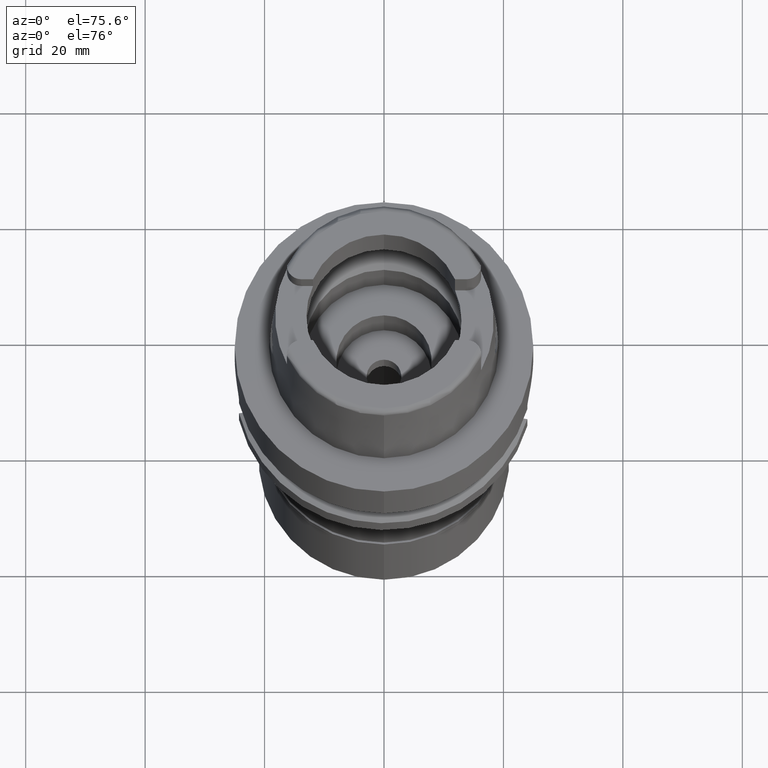
[diagram: clean part render]
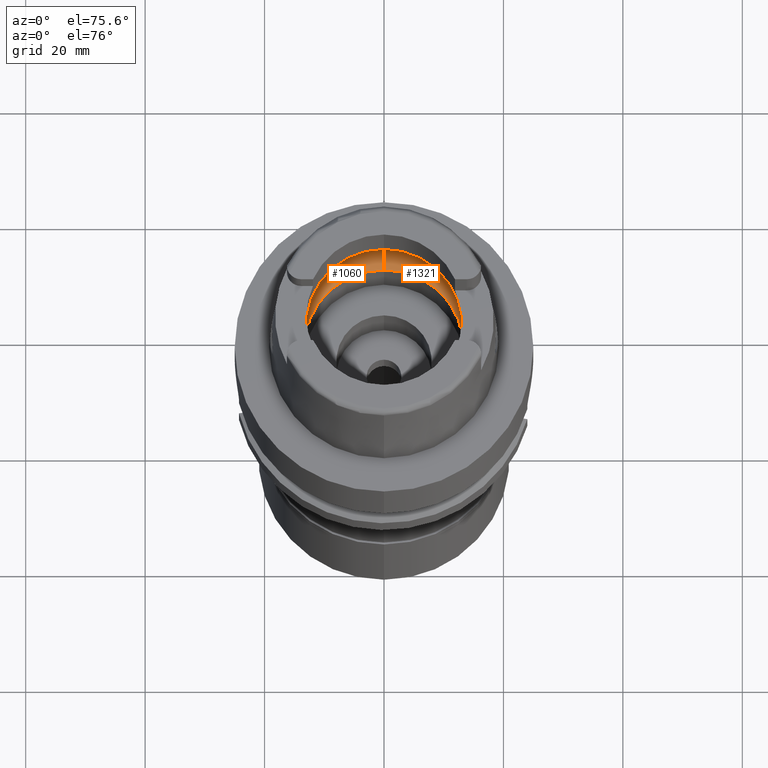
[diagram: same view with one multi-face feature highlighted, each face labeled with its STEP entity id]
A machine part, auxiliary view. The highlighted faces form ONE feature: a constant-radius fillet chain: 2 tangent blend faces with common blend radius 6 mm. The faces share edges in the B-rep.
Their STEP definitions:
[1] entity #1060 (Torus):
#5 = CARTESIAN_POINT ( 'NONE',  ( -15.92748130313666799, -1.536287252972227124, 4.910241166260291834 ) ) ;
#130 = VERTEX_POINT ( 'NONE', #3704 ) ;
#197 = AXIS2_PLACEMENT_3D ( 'NONE', #1414, #2246, #3948 ) ;
#212 = ORIENTED_EDGE ( 'NONE', *, *, #2980, .F. ) ;
#507 = CARTESIAN_POINT ( 'NONE',  ( 0.0000000000000000000, 0.0000000000000000000, 5.060987926546999915 ) ) ;
#533 = VERTEX_POINT ( 'NONE', #4142 ) ;
#663 = CARTESIAN_POINT ( 'NONE',  ( -15.90436354886000103, 1.746774199932999982, 5.060987926546999915 ) ) ;
#678 = B_SPLINE_CURVE_WITH_KNOTS ( 'NONE', 3,
 ( #3483, #4872, #2756, #4461, #3055, #663 ),
 .UNSPECIFIED., .F., .F.,
 ( 4, 2, 4 ),
 ( 0.0000000000000000000, 0.5000000000000000000, 1.000000000000000000 ),
 .UNSPECIFIED. ) ;
#879 = ORIENTED_EDGE ( 'NONE', *, *, #1260, .F. ) ;
#881 = ORIENTED_EDGE ( 'NONE', *, *, #2352, .F. ) ;
#890 = EDGE_CURVE ( 'NONE', #4356, #2804, #1323, .T. ) ;
#931 = DIRECTION ( 'NONE',  ( 0.0000000000000000000, -1.000000000000000000, 0.0000000000000000000 ) ) ;
#1004 = VERTEX_POINT ( 'NONE', #2029 ) ;
#1060 = ADVANCED_FACE ( 'NONE', ( #5416 ), #4874, .F. ) ;
#1119 = DIRECTION ( 'NONE',  ( 0.0000000000000000000, 0.0000000000000000000, -1.000000000000000000 ) ) ;
#1244 = ORIENTED_EDGE ( 'NONE', *, *, #890, .F. ) ;
#1260 = EDGE_CURVE ( 'NONE', #130, #4488, #5432, .T. ) ;
#1268 = AXIS2_PLACEMENT_3D ( 'NONE', #4284, #4640, #4225 ) ;
#1323 = CIRCLE ( 'NONE', #2382, 16.00000000000000355 ) ;
#1414 = CARTESIAN_POINT ( 'NONE',  ( 0.0000000000000000000, 10.00000000000000000, 5.060987926546999915 ) ) ;
#1491 = EDGE_CURVE ( 'NONE', #533, #130, #3712, .T. ) ;
#1542 = DIRECTION ( 'NONE',  ( 0.0000000000000000000, 0.0000000000000000000, -1.000000000000000000 ) ) ;
#1612 = CARTESIAN_POINT ( 'NONE',  ( -15.94481961884416954, -1.284363903373151983, 4.771085202048062079 ) ) ;
#1690 = CARTESIAN_POINT ( 'NONE',  ( -15.97371681168999835, 0.0000000000000000000, 4.500000000000000000 ) ) ;
#1849 = CARTESIAN_POINT ( 'NONE',  ( -15.90436354886000103, 1.746774199932999982, 5.060987926546999915 ) ) ;
#2029 = CARTESIAN_POINT ( 'NONE',  ( 0.0000000000000000000, 13.29999999999999893, 0.05000000000001000172 ) ) ;
#2101 = CARTESIAN_POINT ( 'NONE',  ( -15.97371681168999835, -0.3626031211644242247, 4.499999999999999112 ) ) ;
#2236 = CIRCLE ( 'NONE', #1268, 13.29999999999999893 ) ;
#2246 = DIRECTION ( 'NONE',  ( 1.000000000000000000, 0.0000000000000000000, 0.0000000000000000000 ) ) ;
#2318 = AXIS2_PLACEMENT_3D ( 'NONE', #3622, #2760, #4952 ) ;
#2352 = EDGE_CURVE ( 'NONE', #4488, #4356, #678, .T. ) ;
#2382 = AXIS2_PLACEMENT_3D ( 'NONE', #3205, #1542, #5309 ) ;
#2547 = CARTESIAN_POINT ( 'NONE',  ( -15.90436354886000103, -1.746774199932999982, 5.060987926546999915 ) ) ;
#2565 = CIRCLE ( 'NONE', #197, 5.999999999999993783 ) ;
#2756 = CARTESIAN_POINT ( 'NONE',  ( -15.96793737312083827, 0.6977532815320883763, 4.565769782569849333 ) ) ;
#2760 = DIRECTION ( 'NONE',  ( -1.000000000000000000, 0.0000000000000000000, 0.0000000000000000000 ) ) ;
#2804 = VERTEX_POINT ( 'NONE', #4944 ) ;
#2951 = ORIENTED_EDGE ( 'NONE', *, *, #3404, .F. ) ;
#2980 = EDGE_CURVE ( 'NONE', #1004, #5066, #2236, .T. ) ;
#3030 = EDGE_LOOP ( 'NONE', ( #4313, #2951, #212, #5279, #1244, #881, #879 ) ) ;
#3055 = CARTESIAN_POINT ( 'NONE',  ( -15.92748130313666799, 1.536287252947671211, 4.910241166242705013 ) ) ;
#3082 = AXIS2_PLACEMENT_3D ( 'NONE', #507, #1119, #931 ) ;
#3205 = CARTESIAN_POINT ( 'NONE',  ( 0.0000000000000000000, 0.0000000000000000000, 5.060987926546999915 ) ) ;
#3263 = EDGE_CURVE ( 'NONE', #1004, #2804, #2565, .T. ) ;
#3337 = CARTESIAN_POINT ( 'NONE',  ( -15.96793737312083472, -0.6977532815764048157, 4.565769782580386682 ) ) ;
#3352 = CARTESIAN_POINT ( 'NONE',  ( -15.97371681168999835, 0.0000000000000000000, 4.500000000000000000 ) ) ;
#3400 = CARTESIAN_POINT ( 'NONE',  ( 0.0000000000000000000, 0.0000000000000000000, 5.060987926546999915 ) ) ;
#3404 = EDGE_CURVE ( 'NONE', #5066, #533, #5410, .T. ) ;
#3483 = CARTESIAN_POINT ( 'NONE',  ( -15.97371681168999835, 0.0000000000000000000, 4.500000000000000000 ) ) ;
#3622 = CARTESIAN_POINT ( 'NONE',  ( 0.0000000000000000000, -10.00000000000000000, 5.060987926546999915 ) ) ;
#3704 = CARTESIAN_POINT ( 'NONE',  ( -15.90436354886000103, -1.746774199932999982, 5.060987926546999915 ) ) ;
#3712 = CIRCLE ( 'NONE', #3082, 16.00000000000000000 ) ;
#3759 = DIRECTION ( 'NONE',  ( 0.0000000000000000000, 1.000000000000000000, 0.0000000000000000000 ) ) ;
#3948 = DIRECTION ( 'NONE',  ( 0.0000000000000000000, 0.5500000000000007105, -0.8351646544245028281 ) ) ;
#4142 = CARTESIAN_POINT ( 'NONE',  ( 0.0000000000000000000, -16.00000000000000000, 5.060987926546999915 ) ) ;
#4225 = DIRECTION ( 'NONE',  ( 0.0000000000000000000, 1.000000000000000000, 0.0000000000000000000 ) ) ;
#4284 = CARTESIAN_POINT ( 'NONE',  ( 0.0000000000000000000, 0.0000000000000000000, 0.05000000000001000172 ) ) ;
#4313 = ORIENTED_EDGE ( 'NONE', *, *, #1491, .F. ) ;
#4356 = VERTEX_POINT ( 'NONE', #1849 ) ;
#4461 = CARTESIAN_POINT ( 'NONE',  ( -15.94481961884416599, 1.284363903331934509, 4.771085202028663375 ) ) ;
#4488 = VERTEX_POINT ( 'NONE', #3352 ) ;
#4623 = DIRECTION ( 'NONE',  ( 0.0000000000000000000, 0.0000000000000000000, 1.000000000000000000 ) ) ;
#4640 = DIRECTION ( 'NONE',  ( 0.0000000000000000000, 0.0000000000000000000, 1.000000000000000000 ) ) ;
#4675 = CARTESIAN_POINT ( 'NONE',  ( 0.0000000000000000000, -13.29999999999999893, 0.05000000000001000172 ) ) ;
#4872 = CARTESIAN_POINT ( 'NONE',  ( -15.97371681168999835, 0.3626031211342209404, 4.500000000000000000 ) ) ;
#4874 = TOROIDAL_SURFACE ( 'NONE', #5032, 10.00000000000000000, 6.000000000000000000 ) ;
#4944 = CARTESIAN_POINT ( 'NONE',  ( 0.0000000000000000000, 16.00000000000000000, 5.060987926546999915 ) ) ;
#4952 = DIRECTION ( 'NONE',  ( 0.0000000000000000000, -0.5500000000000007105, -0.8351646544245028281 ) ) ;
#5032 = AXIS2_PLACEMENT_3D ( 'NONE', #3400, #4623, #3759 ) ;
#5066 = VERTEX_POINT ( 'NONE', #4675 ) ;
#5279 = ORIENTED_EDGE ( 'NONE', *, *, #3263, .T. ) ;
#5309 = DIRECTION ( 'NONE',  ( -0.9940227218040297297, 0.1091733874958031730, 0.0000000000000000000 ) ) ;
#5410 = CIRCLE ( 'NONE', #2318, 5.999999999999993783 ) ;
#5416 = FACE_OUTER_BOUND ( 'NONE', #3030, .T. ) ;
#5432 = B_SPLINE_CURVE_WITH_KNOTS ( 'NONE', 3,
 ( #2547, #5, #1612, #3337, #2101, #1690 ),
 .UNSPECIFIED., .F., .F.,
 ( 4, 2, 4 ),
 ( 0.0000000000000000000, 0.5000000000000000000, 1.000000000000000000 ),
 .UNSPECIFIED. ) ;
[2] entity #1321 (Torus):
#46 = CARTESIAN_POINT ( 'NONE',  ( 15.97371681168999835, 0.3626031211644606955, 4.500000000000000888 ) ) ;
#119 = B_SPLINE_CURVE_WITH_KNOTS ( 'NONE', 3,
 ( #485, #5132, #2193, #155, #46, #4339 ),
 .UNSPECIFIED., .F., .F.,
 ( 4, 2, 4 ),
 ( 0.0000000000000000000, 0.5000000000000000000, 1.000000000000000000 ),
 .UNSPECIFIED. ) ;
#149 = CARTESIAN_POINT ( 'NONE',  ( 0.0000000000000000000, 0.0000000000000000000, 5.060987926546999915 ) ) ;
#155 = CARTESIAN_POINT ( 'NONE',  ( 15.96793737312082406, 0.6977532815764533325, 4.565769782580398228 ) ) ;
#197 = AXIS2_PLACEMENT_3D ( 'NONE', #1414, #2246, #3948 ) ;
#220 = CARTESIAN_POINT ( 'NONE',  ( 15.97371681168999835, 0.0000000000000000000, 4.500000000000000000 ) ) ;
#287 = DIRECTION ( 'NONE',  ( 0.0000000000000000000, 0.0000000000000000000, -1.000000000000000000 ) ) ;
#440 = VERTEX_POINT ( 'NONE', #4222 ) ;
#442 = AXIS2_PLACEMENT_3D ( 'NONE', #4230, #2053, #482 ) ;
#482 = DIRECTION ( 'NONE',  ( 0.0000000000000000000, -1.000000000000000000, 0.0000000000000000000 ) ) ;
#485 = CARTESIAN_POINT ( 'NONE',  ( 15.90436354886000103, 1.746774199932999982, 5.060987926546999915 ) ) ;
#492 = ORIENTED_EDGE ( 'NONE', *, *, #1227, .F. ) ;
#533 = VERTEX_POINT ( 'NONE', #4142 ) ;
#726 = AXIS2_PLACEMENT_3D ( 'NONE', #149, #5181, #1333 ) ;
#947 = VERTEX_POINT ( 'NONE', #3287 ) ;
#1004 = VERTEX_POINT ( 'NONE', #2029 ) ;
#1014 = CIRCLE ( 'NONE', #4820, 16.00000000000000000 ) ;
#1227 = EDGE_CURVE ( 'NONE', #5066, #1004, #5212, .T. ) ;
#1321 = ADVANCED_FACE ( 'NONE', ( #4590 ), #3360, .F. ) ;
#1332 = B_SPLINE_CURVE_WITH_KNOTS ( 'NONE', 3,
 ( #4210, #4262, #3265, #4083, #4650, #1523 ),
 .UNSPECIFIED., .F., .F.,
 ( 4, 2, 4 ),
 ( 0.0000000000000000000, 0.5000000000000000000, 1.000000000000000000 ),
 .UNSPECIFIED. ) ;
#1333 = DIRECTION ( 'NONE',  ( 0.9940227218040297297, -0.1091733874958031730, 0.0000000000000000000 ) ) ;
#1414 = CARTESIAN_POINT ( 'NONE',  ( 0.0000000000000000000, 10.00000000000000000, 5.060987926546999915 ) ) ;
#1523 = CARTESIAN_POINT ( 'NONE',  ( 15.90436354886000103, -1.746774199932999982, 5.060987926546999915 ) ) ;
#1843 = ORIENTED_EDGE ( 'NONE', *, *, #3179, .F. ) ;
#1980 = ORIENTED_EDGE ( 'NONE', *, *, #3690, .F. ) ;
#2029 = CARTESIAN_POINT ( 'NONE',  ( 0.0000000000000000000, 13.29999999999999893, 0.05000000000001000172 ) ) ;
#2053 = DIRECTION ( 'NONE',  ( 0.0000000000000000000, 0.0000000000000000000, 1.000000000000000000 ) ) ;
#2193 = CARTESIAN_POINT ( 'NONE',  ( 15.94481961884416954, 1.284363903373195281, 4.771085202048084284 ) ) ;
#2246 = DIRECTION ( 'NONE',  ( 1.000000000000000000, 0.0000000000000000000, 0.0000000000000000000 ) ) ;
#2307 = CIRCLE ( 'NONE', #726, 16.00000000000000355 ) ;
#2318 = AXIS2_PLACEMENT_3D ( 'NONE', #3622, #2760, #4952 ) ;
#2340 = VERTEX_POINT ( 'NONE', #220 ) ;
#2353 = EDGE_LOOP ( 'NONE', ( #1980, #3924, #3409, #492, #3491, #1843, #2944 ) ) ;
#2387 = AXIS2_PLACEMENT_3D ( 'NONE', #4206, #2935, #2799 ) ;
#2565 = CIRCLE ( 'NONE', #197, 5.999999999999993783 ) ;
#2760 = DIRECTION ( 'NONE',  ( -1.000000000000000000, 0.0000000000000000000, 0.0000000000000000000 ) ) ;
#2799 = DIRECTION ( 'NONE',  ( 0.0000000000000000000, 1.000000000000000000, 0.0000000000000000000 ) ) ;
#2800 = EDGE_CURVE ( 'NONE', #2804, #947, #1014, .T. ) ;
#2804 = VERTEX_POINT ( 'NONE', #4944 ) ;
#2935 = DIRECTION ( 'NONE',  ( 0.0000000000000000000, 0.0000000000000000000, 1.000000000000000000 ) ) ;
#2944 = ORIENTED_EDGE ( 'NONE', *, *, #5070, .F. ) ;
#3179 = EDGE_CURVE ( 'NONE', #440, #533, #2307, .T. ) ;
#3192 = DIRECTION ( 'NONE',  ( 0.0000000000000000000, 1.000000000000000000, 0.0000000000000000000 ) ) ;
#3263 = EDGE_CURVE ( 'NONE', #1004, #2804, #2565, .T. ) ;
#3265 = CARTESIAN_POINT ( 'NONE',  ( 15.96793737312083472, -0.6977532816171033714, 4.565769782590064274 ) ) ;
#3287 = CARTESIAN_POINT ( 'NONE',  ( 15.90436354886000103, 1.746774199932999982, 5.060987926546999915 ) ) ;
#3360 = TOROIDAL_SURFACE ( 'NONE', #2387, 10.00000000000000000, 6.000000000000000000 ) ;
#3404 = EDGE_CURVE ( 'NONE', #5066, #533, #5410, .T. ) ;
#3409 = ORIENTED_EDGE ( 'NONE', *, *, #3263, .F. ) ;
#3491 = ORIENTED_EDGE ( 'NONE', *, *, #3404, .T. ) ;
#3622 = CARTESIAN_POINT ( 'NONE',  ( 0.0000000000000000000, -10.00000000000000000, 5.060987926546999915 ) ) ;
#3690 = EDGE_CURVE ( 'NONE', #947, #2340, #119, .T. ) ;
#3924 = ORIENTED_EDGE ( 'NONE', *, *, #2800, .F. ) ;
#3948 = DIRECTION ( 'NONE',  ( 0.0000000000000000000, 0.5500000000000007105, -0.8351646544245028281 ) ) ;
#4083 = CARTESIAN_POINT ( 'NONE',  ( 15.94481961884416599, -1.284363903411000596, 4.771085202065872721 ) ) ;
#4094 = CARTESIAN_POINT ( 'NONE',  ( 0.0000000000000000000, 0.0000000000000000000, 5.060987926546999915 ) ) ;
#4142 = CARTESIAN_POINT ( 'NONE',  ( 0.0000000000000000000, -16.00000000000000000, 5.060987926546999915 ) ) ;
#4206 = CARTESIAN_POINT ( 'NONE',  ( 0.0000000000000000000, 0.0000000000000000000, 5.060987926546999915 ) ) ;
#4210 = CARTESIAN_POINT ( 'NONE',  ( 15.97371681168999835, 0.0000000000000000000, 4.500000000000000000 ) ) ;
#4222 = CARTESIAN_POINT ( 'NONE',  ( 15.90436354886000103, -1.746774199932999982, 5.060987926546999915 ) ) ;
#4230 = CARTESIAN_POINT ( 'NONE',  ( 0.0000000000000000000, 0.0000000000000000000, 0.05000000000001000172 ) ) ;
#4262 = CARTESIAN_POINT ( 'NONE',  ( 15.97371681169000190, -0.3626031211921638686, 4.500000000000000000 ) ) ;
#4339 = CARTESIAN_POINT ( 'NONE',  ( 15.97371681168999835, 0.0000000000000000000, 4.500000000000000000 ) ) ;
#4590 = FACE_OUTER_BOUND ( 'NONE', #2353, .T. ) ;
#4650 = CARTESIAN_POINT ( 'NONE',  ( 15.92748130313666266, -1.536287252994779751, 4.910241166276443359 ) ) ;
#4675 = CARTESIAN_POINT ( 'NONE',  ( 0.0000000000000000000, -13.29999999999999893, 0.05000000000001000172 ) ) ;
#4820 = AXIS2_PLACEMENT_3D ( 'NONE', #4094, #287, #3192 ) ;
#4944 = CARTESIAN_POINT ( 'NONE',  ( 0.0000000000000000000, 16.00000000000000000, 5.060987926546999915 ) ) ;
#4952 = DIRECTION ( 'NONE',  ( 0.0000000000000000000, -0.5500000000000007105, -0.8351646544245028281 ) ) ;
#5066 = VERTEX_POINT ( 'NONE', #4675 ) ;
#5070 = EDGE_CURVE ( 'NONE', #2340, #440, #1332, .T. ) ;
#5132 = CARTESIAN_POINT ( 'NONE',  ( 15.92748130313666266, 1.536287252972255990, 4.910241166260312262 ) ) ;
#5181 = DIRECTION ( 'NONE',  ( 0.0000000000000000000, 0.0000000000000000000, -1.000000000000000000 ) ) ;
#5212 = CIRCLE ( 'NONE', #442, 13.29999999999999893 ) ;
#5410 = CIRCLE ( 'NONE', #2318, 5.999999999999993783 ) ;